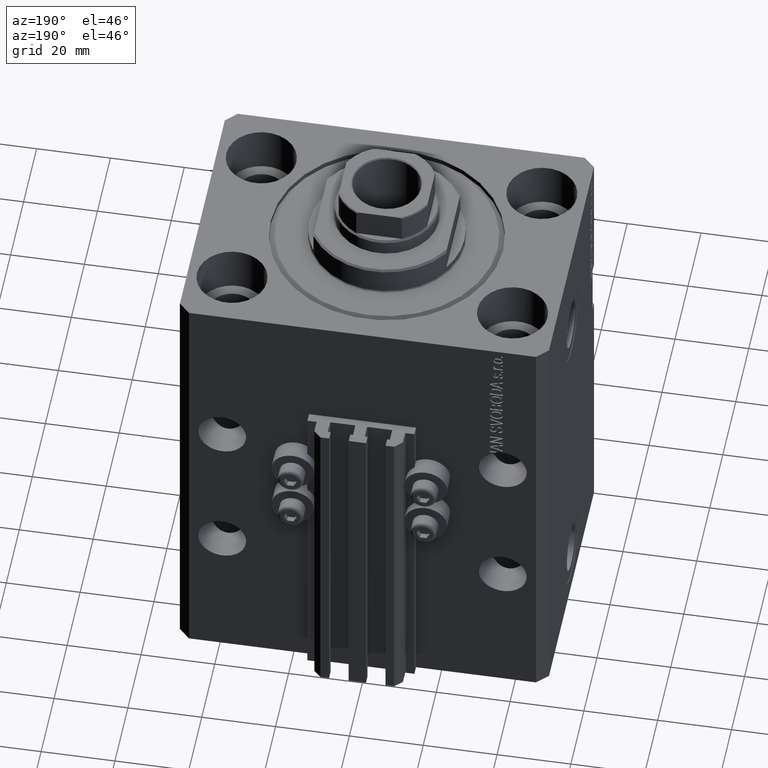
[diagram: clean part render]
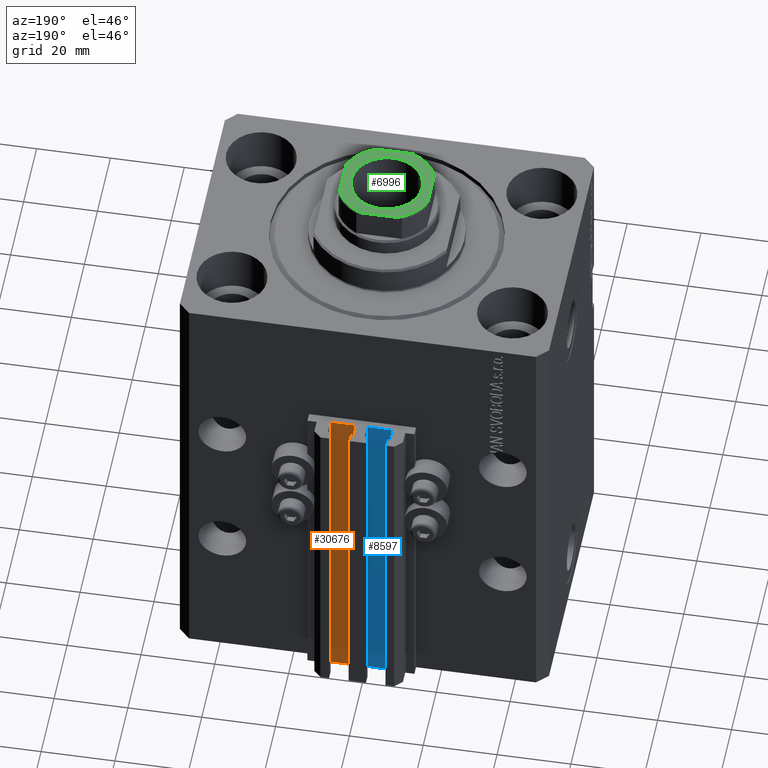
[diagram: same view with three faces highlighted in distinct colors, each labeled with its STEP entity id]
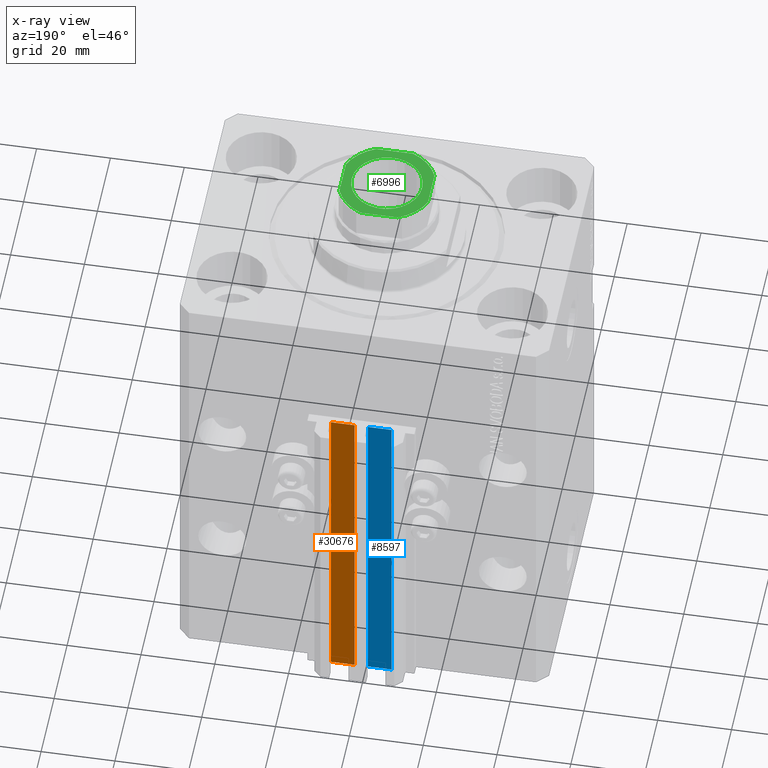
[diagram: x-ray of the same camera — body ghosted, the three highlighted faces saturated]
A machine part, auxiliary view with three faces highlighted in distinct colors.
The next image is the same camera in x-ray (body ghosted, the three faces saturated) — at least one of them is partly hidden behind the body in this view.
Their STEP definitions:

[orange] entity #30676 — the highlighted planar face has unit normal (-0, 1, 0).
#77 = CARTESIAN_POINT ( 'NONE',  ( 8.199999999999999289, 39.50000000000000711, -125.0000000000000000 ) ) ;
#3041 = CARTESIAN_POINT ( 'NONE',  ( 1.800000000000000933, 39.50000000000000000, -125.0000000000000000 ) ) ;
#3641 = EDGE_CURVE ( 'NONE', #43772, #46849, #14518, .T. ) ;
#4165 = LINE ( 'NONE', #3041, #19326 ) ;
#4320 = DIRECTION ( 'NONE',  ( 0.000000000000000000, 0.000000000000000000, 1.000000000000000000 ) ) ;
#4513 = PLANE ( 'NONE',  #37531 ) ;
#6290 = ORIENTED_EDGE ( 'NONE', *, *, #23861, .T. ) ;
#13901 = CARTESIAN_POINT ( 'NONE',  ( 8.199999999999999289, 39.50000000000000711, -125.0000000000000000 ) ) ;
#14518 = LINE ( 'NONE', #43552, #18881 ) ;
#18881 = VECTOR ( 'NONE', #25020, 1000.000000000000000 ) ;
#19326 = VECTOR ( 'NONE', #25206, 1000.000000000000000 ) ;
#22048 = CARTESIAN_POINT ( 'NONE',  ( 1.800000000000000933, 39.50000000000000000, -125.0000000000000000 ) ) ;
#22783 = FACE_OUTER_BOUND ( 'NONE', #29297, .T. ) ;
#23855 = VERTEX_POINT ( 'NONE', #37335 ) ;
#23861 = EDGE_CURVE ( 'NONE', #46849, #34767, #4165, .T. ) ;
#24641 = LINE ( 'NONE', #13901, #32298 ) ;
#25020 = DIRECTION ( 'NONE',  ( -1.000000000000000000, -1.084202172485504828E-15, 0.000000000000000000 ) ) ;
#25206 = DIRECTION ( 'NONE',  ( 0.000000000000000000, 0.000000000000000000, 1.000000000000000000 ) ) ;
#25400 = CARTESIAN_POINT ( 'NONE',  ( 1.800000000000000933, 39.50000000000000000, -33.00000000000000000 ) ) ;
#26213 = CARTESIAN_POINT ( 'NONE',  ( 8.199999999999999289, 39.50000000000000711, -125.0000000000000000 ) ) ;
#26696 = DIRECTION ( 'NONE',  ( -1.000000000000000000, -1.084202172485504828E-15, 0.000000000000000000 ) ) ;
#28005 = LINE ( 'NONE', #39471, #28235 ) ;
#28235 = VECTOR ( 'NONE', #43357, 1000.000000000000000 ) ;
#29297 = EDGE_LOOP ( 'NONE', ( #45027, #45673, #29599, #6290 ) ) ;
#29599 = ORIENTED_EDGE ( 'NONE', *, *, #3641, .T. ) ;
#30676 = ADVANCED_FACE ( 'NONE', ( #22783 ), #4513, .T. ) ;
#32019 = EDGE_CURVE ( 'NONE', #23855, #34767, #28005, .T. ) ;
#32298 = VECTOR ( 'NONE', #4320, 1000.000000000000000 ) ;
#34001 = DIRECTION ( 'NONE',  ( -1.084202172485504828E-15, 1.000000000000000000, 0.000000000000000000 ) ) ;
#34767 = VERTEX_POINT ( 'NONE', #25400 ) ;
#36992 = EDGE_CURVE ( 'NONE', #43772, #23855, #24641, .T. ) ;
#37335 = CARTESIAN_POINT ( 'NONE',  ( 8.199999999999999289, 39.50000000000000711, -33.00000000000000000 ) ) ;
#37531 = AXIS2_PLACEMENT_3D ( 'NONE', #26213, #34001, #26696 ) ;
#39471 = CARTESIAN_POINT ( 'NONE',  ( 8.199999999999999289, 39.50000000000000711, -33.00000000000000000 ) ) ;
#43357 = DIRECTION ( 'NONE',  ( -1.000000000000000000, -1.084202172485504828E-15, 0.000000000000000000 ) ) ;
#43552 = CARTESIAN_POINT ( 'NONE',  ( 8.199999999999999289, 39.50000000000000711, -125.0000000000000000 ) ) ;
#43772 = VERTEX_POINT ( 'NONE', #77 ) ;
#45027 = ORIENTED_EDGE ( 'NONE', *, *, #32019, .F. ) ;
#45673 = ORIENTED_EDGE ( 'NONE', *, *, #36992, .F. ) ;
#46849 = VERTEX_POINT ( 'NONE', #22048 ) ;

[blue] entity #8597 — the highlighted planar face has unit normal (0, 1, 0).
#1641 = CARTESIAN_POINT ( 'NONE',  ( -8.199999999999997513, 39.50000000000000000, -125.0000000000000000 ) ) ;
#2388 = VERTEX_POINT ( 'NONE', #15523 ) ;
#6541 = LINE ( 'NONE', #21405, #9939 ) ;
#6615 = AXIS2_PLACEMENT_3D ( 'NONE', #36116, #25385, #13927 ) ;
#7053 = LINE ( 'NONE', #40678, #30808 ) ;
#7076 = CARTESIAN_POINT ( 'NONE',  ( -1.800000000000000933, 39.50000000000000000, -33.00000000000000000 ) ) ;
#7280 = DIRECTION ( 'NONE',  ( 0.000000000000000000, 0.000000000000000000, 1.000000000000000000 ) ) ;
#7708 = VECTOR ( 'NONE', #44452, 1000.000000000000000 ) ;
#8597 = ADVANCED_FACE ( 'NONE', ( #14159 ), #14402, .T. ) ;
#8903 = ORIENTED_EDGE ( 'NONE', *, *, #18445, .T. ) ;
#9939 = VECTOR ( 'NONE', #36767, 1000.000000000000000 ) ;
#13927 = DIRECTION ( 'NONE',  ( 0.000000000000000000, 0.000000000000000000, 1.000000000000000000 ) ) ;
#14159 = FACE_OUTER_BOUND ( 'NONE', #24619, .T. ) ;
#14402 = PLANE ( 'NONE',  #6615 ) ;
#15523 = CARTESIAN_POINT ( 'NONE',  ( -1.800000000000000933, 39.50000000000000000, -33.00000000000000000 ) ) ;
#18445 = EDGE_CURVE ( 'NONE', #32212, #33978, #6541, .T. ) ;
#19858 = CARTESIAN_POINT ( 'NONE',  ( -1.800000000000000933, 39.50000000000000000, -125.0000000000000000 ) ) ;
#21405 = CARTESIAN_POINT ( 'NONE',  ( -8.199999999999997513, 39.50000000000000000, -125.0000000000000000 ) ) ;
#22166 = LINE ( 'NONE', #7076, #44134 ) ;
#24619 = EDGE_LOOP ( 'NONE', ( #34671, #41514, #40519, #8903 ) ) ;
#24868 = EDGE_CURVE ( 'NONE', #45140, #32212, #44687, .T. ) ;
#25385 = DIRECTION ( 'NONE',  ( 0.000000000000000000, 1.000000000000000000, -0.000000000000000000 ) ) ;
#29113 = CARTESIAN_POINT ( 'NONE',  ( -1.800000000000000933, 39.50000000000000000, -125.0000000000000000 ) ) ;
#30808 = VECTOR ( 'NONE', #7280, 1000.000000000000000 ) ;
#32212 = VERTEX_POINT ( 'NONE', #1641 ) ;
#33978 = VERTEX_POINT ( 'NONE', #39010 ) ;
#34671 = ORIENTED_EDGE ( 'NONE', *, *, #46482, .F. ) ;
#36116 = CARTESIAN_POINT ( 'NONE',  ( -1.800000000000000933, 39.50000000000000000, -125.0000000000000000 ) ) ;
#36767 = DIRECTION ( 'NONE',  ( 0.000000000000000000, 0.000000000000000000, 1.000000000000000000 ) ) ;
#37058 = DIRECTION ( 'NONE',  ( -1.000000000000000000, 0.000000000000000000, 0.000000000000000000 ) ) ;
#39010 = CARTESIAN_POINT ( 'NONE',  ( -8.199999999999997513, 39.50000000000000000, -33.00000000000000000 ) ) ;
#39464 = EDGE_CURVE ( 'NONE', #45140, #2388, #7053, .T. ) ;
#40519 = ORIENTED_EDGE ( 'NONE', *, *, #24868, .T. ) ;
#40678 = CARTESIAN_POINT ( 'NONE',  ( -1.800000000000000933, 39.50000000000000000, -125.0000000000000000 ) ) ;
#41514 = ORIENTED_EDGE ( 'NONE', *, *, #39464, .F. ) ;
#44134 = VECTOR ( 'NONE', #37058, 1000.000000000000000 ) ;
#44452 = DIRECTION ( 'NONE',  ( -1.000000000000000000, 0.000000000000000000, 0.000000000000000000 ) ) ;
#44687 = LINE ( 'NONE', #29113, #7708 ) ;
#45140 = VERTEX_POINT ( 'NONE', #19858 ) ;
#46482 = EDGE_CURVE ( 'NONE', #2388, #33978, #22166, .T. ) ;

[green] entity #6996 — the highlighted planar face has unit normal (0, 0, 1).
#919 = FACE_OUTER_BOUND ( 'NONE', #30324, .T. ) ;
#1157 = DIRECTION ( 'NONE',  ( -0.000000000000000000, 0.000000000000000000, 1.000000000000000000 ) ) ;
#1164 = VECTOR ( 'NONE', #24774, 1000.000000000000000 ) ;
#1808 = VERTEX_POINT ( 'NONE', #31579 ) ;
#1875 = VERTEX_POINT ( 'NONE', #26366 ) ;
#1922 = EDGE_LOOP ( 'NONE', ( #37983, #21443 ) ) ;
#1976 = ORIENTED_EDGE ( 'NONE', *, *, #23689, .T. ) ;
#2438 = DIRECTION ( 'NONE',  ( -0.000000000000000000, 0.000000000000000000, 1.000000000000000000 ) ) ;
#2560 = LINE ( 'NONE', #32281, #39470 ) ;
#3845 = PLANE ( 'NONE',  #15123 ) ;
#4038 = CARTESIAN_POINT ( 'NONE',  ( 0.000000000000000000, 0.000000000000000000, 133.0999999999999943 ) ) ;
#4157 = EDGE_CURVE ( 'NONE', #45013, #11177, #14260, .T. ) ;
#5159 = VERTEX_POINT ( 'NONE', #37503 ) ;
#5640 = EDGE_CURVE ( 'NONE', #11177, #20584, #34753, .T. ) ;
#6996 = ADVANCED_FACE ( 'NONE', ( #19660, #919 ), #3845, .T. ) ;
#7171 = EDGE_CURVE ( 'NONE', #1875, #11003, #13543, .T. ) ;
#7751 = EDGE_CURVE ( 'NONE', #1808, #5159, #43186, .T. ) ;
#8037 = CARTESIAN_POINT ( 'NONE',  ( 0.000000000000000000, 0.000000000000000000, 133.0999999999999943 ) ) ;
#8189 = AXIS2_PLACEMENT_3D ( 'NONE', #24724, #47384, #43726 ) ;
#8350 = CARTESIAN_POINT ( 'NONE',  ( 12.00000000000000178, 4.999999999999994671, 133.0999999999999943 ) ) ;
#9890 = CARTESIAN_POINT ( 'NONE',  ( 12.00000000000000000, 12.00000000000000000, 133.0999999999999943 ) ) ;
#11003 = VERTEX_POINT ( 'NONE', #8350 ) ;
#11177 = VERTEX_POINT ( 'NONE', #32691 ) ;
#11333 = ORIENTED_EDGE ( 'NONE', *, *, #4157, .T. ) ;
#11385 = DIRECTION ( 'NONE',  ( 1.000000000000000000, 0.000000000000000000, 0.000000000000000000 ) ) ;
#11555 = CARTESIAN_POINT ( 'NONE',  ( 0.000000000000000000, 0.000000000000000000, 133.0999999999999943 ) ) ;
#11591 = CARTESIAN_POINT ( 'NONE',  ( 5.000000000000002665, 12.00000000000000000, 133.0999999999999943 ) ) ;
#12738 = VECTOR ( 'NONE', #41825, 1000.000000000000000 ) ;
#13242 = VERTEX_POINT ( 'NONE', #11591 ) ;
#13543 = LINE ( 'NONE', #9890, #1164 ) ;
#13566 = CARTESIAN_POINT ( 'NONE',  ( -11.99999999999999822, -5.000000000000001776, 133.0999999999999943 ) ) ;
#14260 = CIRCLE ( 'NONE', #34525, 13.00000000000000000 ) ;
#15123 = AXIS2_PLACEMENT_3D ( 'NONE', #34538, #1157, #29019 ) ;
#15667 = EDGE_CURVE ( 'NONE', #13242, #45013, #2560, .T. ) ;
#16713 = EDGE_CURVE ( 'NONE', #5159, #1808, #41058, .T. ) ;
#18456 = EDGE_CURVE ( 'NONE', #11003, #13242, #47319, .T. ) ;
#18754 = DIRECTION ( 'NONE',  ( 1.000000000000000000, 0.000000000000000000, 0.000000000000000000 ) ) ;
#18933 = CARTESIAN_POINT ( 'NONE',  ( 0.000000000000000000, 0.000000000000000000, 133.0999999999999943 ) ) ;
#19660 = FACE_BOUND ( 'NONE', #1922, .T. ) ;
#20061 = ORIENTED_EDGE ( 'NONE', *, *, #26841, .T. ) ;
#20093 = CIRCLE ( 'NONE', #47347, 13.00000000000000000 ) ;
#20584 = VERTEX_POINT ( 'NONE', #13566 ) ;
#20938 = CARTESIAN_POINT ( 'NONE',  ( 0.000000000000000000, 0.000000000000000000, 133.0999999999999943 ) ) ;
#21296 = LINE ( 'NONE', #24245, #34261 ) ;
#21314 = ORIENTED_EDGE ( 'NONE', *, *, #18456, .T. ) ;
#21443 = ORIENTED_EDGE ( 'NONE', *, *, #7751, .T. ) ;
#21939 = DIRECTION ( 'NONE',  ( 0.000000000000000000, -0.000000000000000000, -1.000000000000000000 ) ) ;
#22562 = DIRECTION ( 'NONE',  ( 1.000000000000000000, 0.000000000000000000, 0.000000000000000000 ) ) ;
#22916 = CARTESIAN_POINT ( 'NONE',  ( 4.999999999999993783, -12.00000000000000178, 133.0999999999999943 ) ) ;
#23057 = VERTEX_POINT ( 'NONE', #22916 ) ;
#23689 = EDGE_CURVE ( 'NONE', #20584, #34903, #20093, .T. ) ;
#24245 = CARTESIAN_POINT ( 'NONE',  ( -11.99999999999999645, -12.00000000000000178, 133.0999999999999943 ) ) ;
#24378 = CARTESIAN_POINT ( 'NONE',  ( -4.999999999999992895, -12.00000000000000178, 133.0999999999999943 ) ) ;
#24724 = CARTESIAN_POINT ( 'NONE',  ( 0.000000000000000000, 0.000000000000000000, 133.0999999999999943 ) ) ;
#24774 = DIRECTION ( 'NONE',  ( -1.445602896647339163E-16, 1.000000000000000000, -0.000000000000000000 ) ) ;
#25717 = DIRECTION ( 'NONE',  ( 1.000000000000000000, 0.000000000000000000, 0.000000000000000000 ) ) ;
#26067 = AXIS2_PLACEMENT_3D ( 'NONE', #8037, #21939, #18754 ) ;
#26270 = AXIS2_PLACEMENT_3D ( 'NONE', #18933, #33810, #11385 ) ;
#26366 = CARTESIAN_POINT ( 'NONE',  ( 12.00000000000000178, -4.999999999999990230, 133.0999999999999943 ) ) ;
#26841 = EDGE_CURVE ( 'NONE', #34903, #23057, #21296, .T. ) ;
#28504 = DIRECTION ( 'NONE',  ( 1.000000000000000000, 0.000000000000000000, 0.000000000000000000 ) ) ;
#28637 = DIRECTION ( 'NONE',  ( -1.000000000000000000, -7.228014483236695816E-17, -0.000000000000000000 ) ) ;
#29019 = DIRECTION ( 'NONE',  ( 1.000000000000000000, 0.000000000000000000, 0.000000000000000000 ) ) ;
#29602 = DIRECTION ( 'NONE',  ( 0.000000000000000000, -0.000000000000000000, -1.000000000000000000 ) ) ;
#30324 = EDGE_LOOP ( 'NONE', ( #32727, #1976, #20061, #31332, #39487, #21314, #34830, #11333 ) ) ;
#30583 = CARTESIAN_POINT ( 'NONE',  ( -5.000000000000001776, 11.99999999999999822, 133.0999999999999943 ) ) ;
#31332 = ORIENTED_EDGE ( 'NONE', *, *, #37866, .T. ) ;
#31579 = CARTESIAN_POINT ( 'NONE',  ( -9.549999999999975842, 1.169537693185719403E-15, 133.0999999999999943 ) ) ;
#32281 = CARTESIAN_POINT ( 'NONE',  ( -11.99999999999999822, 11.99999999999999822, 133.0999999999999943 ) ) ;
#32519 = DIRECTION ( 'NONE',  ( 1.000000000000000000, 7.228014483236695816E-17, 0.000000000000000000 ) ) ;
#32691 = CARTESIAN_POINT ( 'NONE',  ( -11.99999999999999822, 5.000000000000000888, 133.0999999999999943 ) ) ;
#32727 = ORIENTED_EDGE ( 'NONE', *, *, #5640, .T. ) ;
#33810 = DIRECTION ( 'NONE',  ( -0.000000000000000000, 0.000000000000000000, 1.000000000000000000 ) ) ;
#34261 = VECTOR ( 'NONE', #32519, 1000.000000000000000 ) ;
#34525 = AXIS2_PLACEMENT_3D ( 'NONE', #20938, #2438, #28504 ) ;
#34538 = CARTESIAN_POINT ( 'NONE',  ( 0.000000000000000000, 0.000000000000000000, 133.0999999999999943 ) ) ;
#34753 = LINE ( 'NONE', #37932, #12738 ) ;
#34830 = ORIENTED_EDGE ( 'NONE', *, *, #15667, .T. ) ;
#34903 = VERTEX_POINT ( 'NONE', #24378 ) ;
#36245 = CIRCLE ( 'NONE', #8189, 13.00000000000000000 ) ;
#37503 = CARTESIAN_POINT ( 'NONE',  ( 9.549999999999975842, 0.000000000000000000, 133.0999999999999943 ) ) ;
#37866 = EDGE_CURVE ( 'NONE', #23057, #1875, #36245, .T. ) ;
#37932 = CARTESIAN_POINT ( 'NONE',  ( -11.99999999999999822, 11.99999999999999822, 133.0999999999999943 ) ) ;
#37983 = ORIENTED_EDGE ( 'NONE', *, *, #16713, .T. ) ;
#39470 = VECTOR ( 'NONE', #28637, 1000.000000000000000 ) ;
#39487 = ORIENTED_EDGE ( 'NONE', *, *, #7171, .T. ) ;
#39505 = AXIS2_PLACEMENT_3D ( 'NONE', #11555, #29602, #25717 ) ;
#41058 = CIRCLE ( 'NONE', #39505, 9.549999999999975842 ) ;
#41333 = DIRECTION ( 'NONE',  ( -0.000000000000000000, 0.000000000000000000, 1.000000000000000000 ) ) ;
#41825 = DIRECTION ( 'NONE',  ( 7.228014483236695816E-17, -1.000000000000000000, 0.000000000000000000 ) ) ;
#43186 = CIRCLE ( 'NONE', #26067, 9.549999999999975842 ) ;
#43726 = DIRECTION ( 'NONE',  ( 1.000000000000000000, 0.000000000000000000, 0.000000000000000000 ) ) ;
#45013 = VERTEX_POINT ( 'NONE', #30583 ) ;
#47319 = CIRCLE ( 'NONE', #26270, 13.00000000000000000 ) ;
#47347 = AXIS2_PLACEMENT_3D ( 'NONE', #4038, #41333, #22562 ) ;
#47384 = DIRECTION ( 'NONE',  ( -0.000000000000000000, 0.000000000000000000, 1.000000000000000000 ) ) ;